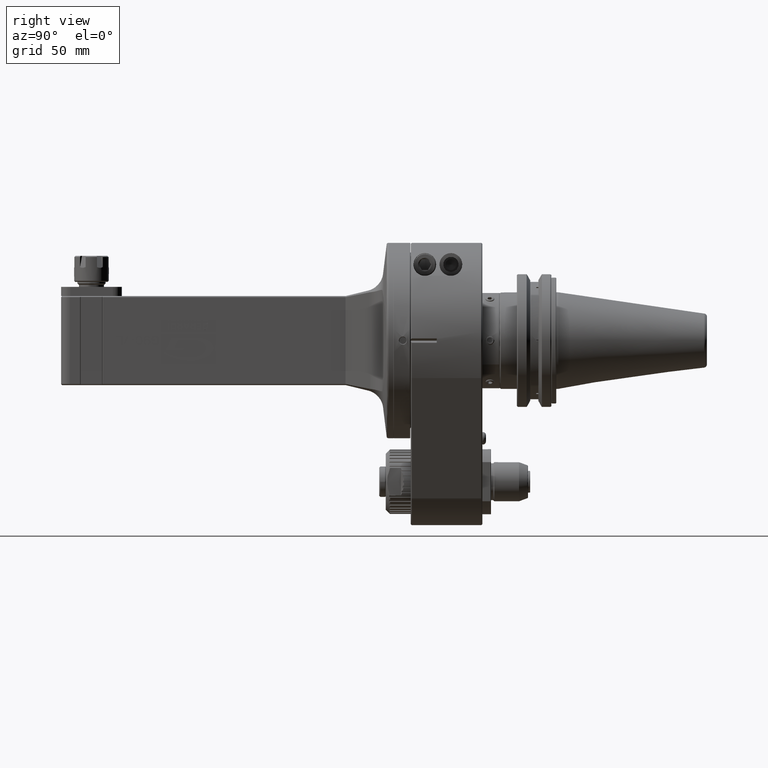
[diagram: clean part render]
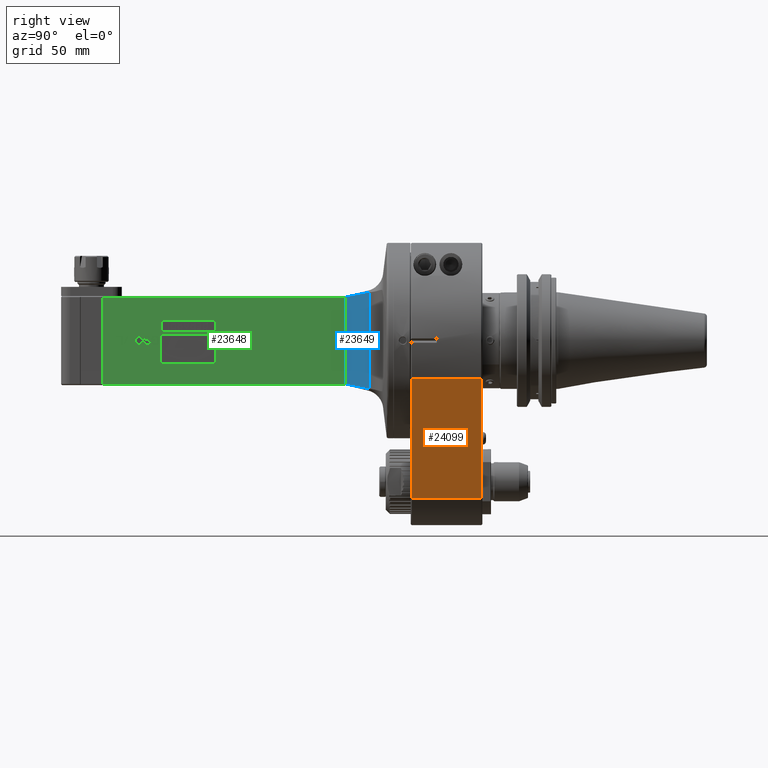
[diagram: same view with three faces highlighted in distinct colors, each labeled with its STEP entity id]
A machine part, right view with three faces highlighted in distinct colors.
Their STEP definitions:

[orange] entity #24099 — the highlighted planar face has unit normal (0.9231, 0, -0.3846).
#1950=LINE('',#42005,#4079);
#1959=LINE('',#42026,#4088);
#1963=LINE('',#42042,#4092);
#1964=LINE('',#42126,#4093);
#4079=VECTOR('',#30734,10.);
#4088=VECTOR('',#30759,10.);
#4092=VECTOR('',#30773,32.0000483181088);
#4093=VECTOR('',#30776,31.99992477058);
#6159=FACE_OUTER_BOUND('',#7654,.T.);
#7654=EDGE_LOOP('',(#19044,#19045,#19046,#19047));
#10687=VERTEX_POINT('',#42000);
#10688=VERTEX_POINT('',#42004);
#10691=VERTEX_POINT('',#42021);
#10692=VERTEX_POINT('',#42025);
#13640=EDGE_CURVE('',#10687,#10688,#1950,.T.);
#13651=EDGE_CURVE('',#10691,#10692,#1959,.T.);
#13659=EDGE_CURVE('',#10692,#10687,#1963,.T.);
#13663=EDGE_CURVE('',#10691,#10688,#1964,.T.);
#19044=ORIENTED_EDGE('',*,*,#13640,.F.);
#19045=ORIENTED_EDGE('',*,*,#13659,.F.);
#19046=ORIENTED_EDGE('',*,*,#13651,.F.);
#19047=ORIENTED_EDGE('',*,*,#13663,.T.);
#23030=PLANE('',#25987);
#24099=ADVANCED_FACE('',(#6159),#23030,.T.);
#25987=AXIS2_PLACEMENT_3D('',#42125,#30774,#30775);
#30734=DIRECTION('',(-0.384615384615406,3.39139971075705E-14,-0.923076923076914));
#30759=DIRECTION('',(0.384615384615406,3.39925017305023E-14,0.923076923076914));
#30773=DIRECTION('',(-3.05107735213611E-6,0.999999999994537,1.27128224226905E-6));
#30774=DIRECTION('center_axis',(0.923076923076914,0.,-0.384615384615406));
#30775=DIRECTION('ref_axis',(-0.384615384615406,0.,-0.923076923076914));
#30776=DIRECTION('',(0.,1.,0.));
#42000=CARTESIAN_POINT('',(41.5384388384042,179.499928540718,-17.3076109934829));
#42004=CARTESIAN_POINT('',(18.4615488916162,179.49984412637,-72.6922401409267));
#42005=CARTESIAN_POINT('',(35.7692391308481,179.500000000003,-31.1537777406057));
#42021=CARTESIAN_POINT('',(18.4615061899688,147.500093571229,-72.6922222896272));
#42025=CARTESIAN_POINT('',(41.5382782036942,147.49968597199,-17.3075440671294));
#42026=CARTESIAN_POINT('',(35.7692391308479,147.499999999997,-31.1537777406062));
#42042=CARTESIAN_POINT('',(41.53854100259,147.4999229556,-17.30765356189));
#42125=CARTESIAN_POINT('Origin',(41.53846990008,147.,-17.30762389445));
#42126=CARTESIAN_POINT('',(18.46151212093,147.5000376147,-72.69222476086));

[blue] entity #23649 — the highlighted planar face has unit normal (0.9487, -0.3162, 0).
#18=ELLIPSE('',#25317,604.125701403409,19.8480944114194);
#27=ELLIPSE('',#25373,605.135766541869,19.8693336282883);
#1057=LINE('',#38777,#3186);
#1193=LINE('',#39049,#3322);
#3186=VECTOR('',#28719,40.);
#3322=VECTOR('',#28857,44.36706754806);
#5709=FACE_OUTER_BOUND('',#7173,.T.);
#7173=EDGE_LOOP('',(#16818,#16819,#16820,#16821));
#9862=VERTEX_POINT('',#36713);
#9866=VERTEX_POINT('',#36748);
#9918=VERTEX_POINT('',#38518);
#9919=VERTEX_POINT('',#38523);
#12381=EDGE_CURVE('',#9866,#9862,#18,.T.);
#12460=EDGE_CURVE('',#9919,#9918,#27,.T.);
#12518=EDGE_CURVE('',#9919,#9862,#1057,.T.);
#12654=EDGE_CURVE('',#9918,#9866,#1193,.T.);
#16818=ORIENTED_EDGE('',*,*,#12654,.T.);
#16819=ORIENTED_EDGE('',*,*,#12381,.T.);
#16820=ORIENTED_EDGE('',*,*,#12518,.F.);
#16821=ORIENTED_EDGE('',*,*,#12460,.T.);
#22703=PLANE('',#25413);
#23649=ADVANCED_FACE('',(#5709),#22703,.T.);
#25317=AXIS2_PLACEMENT_3D('',#36749,#28484,#28485);
#25373=AXIS2_PLACEMENT_3D('',#38524,#28610,#28611);
#25413=AXIS2_PLACEMENT_3D('',#39048,#28855,#28856);
#28484=DIRECTION('center_axis',(0.948687353573761,-0.316215591914247,-6.78198789504958E-5));
#28485=DIRECTION('ref_axis',(0.314131377072307,0.942409814259539,0.114826912899188));
#28610=DIRECTION('center_axis',(0.948687356785233,-0.31621558226789,6.78736138693006E-5));
#28611=DIRECTION('ref_axis',(0.314132193097332,0.942412279688653,-0.114804443955352));
#28719=DIRECTION('',(0.,0.,1.));
#28855=DIRECTION('center_axis',(0.948683298050524,-0.316227766016808,0.));
#28856=DIRECTION('ref_axis',(0.316227766016808,0.948683298050524,0.));
#28857=DIRECTION('',(0.,0.,1.));
#36713=CARTESIAN_POINT('',(15.,117.,20.));
#36748=CARTESIAN_POINT('',(18.64945573419,127.9483672026,22.18353377403));
#36749=CARTESIAN_POINT('Origin',(189.741352667871,641.234468526518,76.010943503144));
#38518=CARTESIAN_POINT('',(18.64945573419,127.9483672026,-22.18353377403));
#38523=CARTESIAN_POINT('',(15.,117.,-20.));
#38524=CARTESIAN_POINT('Origin',(190.057800546979,642.183839467653,-76.1115045068981));
#38777=CARTESIAN_POINT('',(15.,117.,-20.));
#39048=CARTESIAN_POINT('Origin',(15.,117.,-54.));
#39049=CARTESIAN_POINT('',(18.64945573419,127.9483672026,-22.18353377403));

[green] entity #23648 — the highlighted planar face has unit normal (1, 0, 0).
#1013=LINE('',#36714,#3142);
#1052=LINE('',#38766,#3181);
#1056=LINE('',#38775,#3185);
#1057=LINE('',#38777,#3186);
#1058=LINE('',#38780,#3187);
#1059=LINE('',#38782,#3188);
#1060=LINE('',#38784,#3189);
#1061=LINE('',#38785,#3190);
#1062=LINE('',#38788,#3191);
#1063=LINE('',#38790,#3192);
#1064=LINE('',#38792,#3193);
#1065=LINE('',#38793,#3194);
#1066=LINE('',#38796,#3195);
#1067=LINE('',#38798,#3196);
#1068=LINE('',#38800,#3197);
#1069=LINE('',#38802,#3198);
#1070=LINE('',#38804,#3199);
#1071=LINE('',#38806,#3200);
#1072=LINE('',#38808,#3201);
#1073=LINE('',#38810,#3202);
#1074=LINE('',#38812,#3203);
#1075=LINE('',#38814,#3204);
#1076=LINE('',#38816,#3205);
#1077=LINE('',#38818,#3206);
#1078=LINE('',#38820,#3207);
#1079=LINE('',#38822,#3208);
#1080=LINE('',#38824,#3209);
#1081=LINE('',#38826,#3210);
#1082=LINE('',#38828,#3211);
#1083=LINE('',#38830,#3212);
#1084=LINE('',#38832,#3213);
#1085=LINE('',#38834,#3214);
#1086=LINE('',#38836,#3215);
#1087=LINE('',#38838,#3216);
#1088=LINE('',#38840,#3217);
#1089=LINE('',#38842,#3218);
#1090=LINE('',#38844,#3219);
#1091=LINE('',#38846,#3220);
#1092=LINE('',#38848,#3221);
#1093=LINE('',#38850,#3222);
#1094=LINE('',#38852,#3223);
#1095=LINE('',#38854,#3224);
#1096=LINE('',#38856,#3225);
#1097=LINE('',#38858,#3226);
#1098=LINE('',#38860,#3227);
#1099=LINE('',#38862,#3228);
#1100=LINE('',#38864,#3229);
#1101=LINE('',#38866,#3230);
#1102=LINE('',#38868,#3231);
#1103=LINE('',#38870,#3232);
#1104=LINE('',#38872,#3233);
#1105=LINE('',#38874,#3234);
#1106=LINE('',#38876,#3235);
#1107=LINE('',#38878,#3236);
#1108=LINE('',#38880,#3237);
#1109=LINE('',#38881,#3238);
#1110=LINE('',#38884,#3239);
#1111=LINE('',#38886,#3240);
#1112=LINE('',#38888,#3241);
#1113=LINE('',#38890,#3242);
#1114=LINE('',#38892,#3243);
#1115=LINE('',#38894,#3244);
#1116=LINE('',#38896,#3245);
#1117=LINE('',#38898,#3246);
#1118=LINE('',#38900,#3247);
#1119=LINE('',#38902,#3248);
#1120=LINE('',#38904,#3249);
#1121=LINE('',#38906,#3250);
#1122=LINE('',#38908,#3251);
#1123=LINE('',#38910,#3252);
#1124=LINE('',#38912,#3253);
#1125=LINE('',#38914,#3254);
#1126=LINE('',#38916,#3255);
#1127=LINE('',#38918,#3256);
#1128=LINE('',#38920,#3257);
#1129=LINE('',#38922,#3258);
#1130=LINE('',#38924,#3259);
#1131=LINE('',#38926,#3260);
#1132=LINE('',#38928,#3261);
#1133=LINE('',#38930,#3262);
#1134=LINE('',#38932,#3263);
#1135=LINE('',#38934,#3264);
#1136=LINE('',#38936,#3265);
#1137=LINE('',#38938,#3266);
#1138=LINE('',#38940,#3267);
#1139=LINE('',#38942,#3268);
#1140=LINE('',#38944,#3269);
#1141=LINE('',#38946,#3270);
#1142=LINE('',#38948,#3271);
#1143=LINE('',#38950,#3272);
#1144=LINE('',#38952,#3273);
#1145=LINE('',#38954,#3274);
#1146=LINE('',#38956,#3275);
#1147=LINE('',#38958,#3276);
#1148=LINE('',#38960,#3277);
#1149=LINE('',#38961,#3278);
#1150=LINE('',#38964,#3279);
#1151=LINE('',#38966,#3280);
#1152=LINE('',#38968,#3281);
#1153=LINE('',#38970,#3282);
#1154=LINE('',#38972,#3283);
#1155=LINE('',#38974,#3284);
#1156=LINE('',#38976,#3285);
#1157=LINE('',#38978,#3286);
#1158=LINE('',#38980,#3287);
#1159=LINE('',#38982,#3288);
#1160=LINE('',#38984,#3289);
#1161=LINE('',#38986,#3290);
#1162=LINE('',#38988,#3291);
#1163=LINE('',#38990,#3292);
#1164=LINE('',#38992,#3293);
#1165=LINE('',#38994,#3294);
#1166=LINE('',#38996,#3295);
#1167=LINE('',#38998,#3296);
#1168=LINE('',#39000,#3297);
#1169=LINE('',#39002,#3298);
#1170=LINE('',#39004,#3299);
#1171=LINE('',#39006,#3300);
#1172=LINE('',#39008,#3301);
#1173=LINE('',#39010,#3302);
#1174=LINE('',#39012,#3303);
#1175=LINE('',#39013,#3304);
#1176=LINE('',#39016,#3305);
#1177=LINE('',#39018,#3306);
#1178=LINE('',#39020,#3307);
#1179=LINE('',#39021,#3308);
#1180=LINE('',#39024,#3309);
#1181=LINE('',#39026,#3310);
#1182=LINE('',#39028,#3311);
#1183=LINE('',#39030,#3312);
#1184=LINE('',#39032,#3313);
#1185=LINE('',#39034,#3314);
#1186=LINE('',#39035,#3315);
#1187=LINE('',#39038,#3316);
#1188=LINE('',#39040,#3317);
#1189=LINE('',#39042,#3318);
#1190=LINE('',#39044,#3319);
#1191=LINE('',#39046,#3320);
#1192=LINE('',#39047,#3321);
#3142=VECTOR('',#28477,111.8);
#3181=VECTOR('',#28702,111.8);
#3185=VECTOR('',#28716,40.);
#3186=VECTOR('',#28719,40.);
#3187=VECTOR('',#28720,13.766);
#3188=VECTOR('',#28721,25.014);
#3189=VECTOR('',#28722,13.766);
#3190=VECTOR('',#28723,25.014);
#3191=VECTOR('',#28724,5.291);
#3192=VECTOR('',#28725,25.036);
#3193=VECTOR('',#28726,5.291);
#3194=VECTOR('',#28727,25.036);
#3195=VECTOR('',#28728,1.276595711708);
#3196=VECTOR('',#28729,0.350476799417901);
#3197=VECTOR('',#28730,0.476445959700797);
#3198=VECTOR('',#28731,0.374277229504597);
#3199=VECTOR('',#28732,0.425269647757222);
#3200=VECTOR('',#28733,0.7499998807907);
#3201=VECTOR('',#28734,0.425269589358281);
#3202=VECTOR('',#28735,0.374277335673004);
#3203=VECTOR('',#28736,0.476445834598099);
#3204=VECTOR('',#28737,0.379034738092882);
#3205=VECTOR('',#28738,0.433614820179393);
#3206=VECTOR('',#28739,1.276595711708);
#3207=VECTOR('',#28740,0.433615054153596);
#3208=VECTOR('',#28741,0.379034684559679);
#3209=VECTOR('',#28742,0.476445813304122);
#3210=VECTOR('',#28743,0.374277325507999);
#3211=VECTOR('',#28744,0.425269587867295);
#3212=VECTOR('',#28745,0.7499998807907);
#3213=VECTOR('',#28746,0.425269646266095);
#3214=VECTOR('',#28747,0.374277219339489);
#3215=VECTOR('',#28748,0.476445938406725);
#3216=VECTOR('',#28749,0.433615038402985);
#3217=VECTOR('',#28750,0.5);
#3218=VECTOR('',#28751,0.268574766529104);
#3219=VECTOR('',#28752,0.302444009342788);
#3220=VECTOR('',#28753,0.344026614917808);
#3221=VECTOR('',#28754,0.7499998807907);
#3222=VECTOR('',#28755,0.344026499413802);
#3223=VECTOR('',#28756,0.302444009342788);
#3224=VECTOR('',#28757,0.304902867185089);
#3225=VECTOR('',#28758,0.350476755694905);
#3226=VECTOR('',#28759,1.276595711708);
#3227=VECTOR('',#28760,0.350476755694905);
#3228=VECTOR('',#28761,0.304902667538408);
#3229=VECTOR('',#28762,0.3024440428877);
#3230=VECTOR('',#28763,0.344026499413802);
#3231=VECTOR('',#28764,0.7499998807907);
#3232=VECTOR('',#28765,0.344026614917808);
#3233=VECTOR('',#28766,0.302444042887717);
#3234=VECTOR('',#28767,0.268574539877606);
#3235=VECTOR('',#28768,0.6808511018753);
#3236=VECTOR('',#28769,0.75);
#3237=VECTOR('',#28770,0.5106382369995);
#3238=VECTOR('',#28771,1.25);
#3239=VECTOR('',#28772,0.268574522564093);
#3240=VECTOR('',#28773,0.4166665077209);
#3241=VECTOR('',#28774,0.304902619706402);
#3242=VECTOR('',#28775,0.302444009342788);
#3243=VECTOR('',#28776,0.264089179439098);
#3244=VECTOR('',#28777,0.5);
#3245=VECTOR('',#28778,0.264089179439098);
#3246=VECTOR('',#28779,0.302444009342788);
#3247=VECTOR('',#28780,0.304902880356412);
#3248=VECTOR('',#28781,0.2685744659012);
#3249=VECTOR('',#28782,0.51739346900309);
#3250=VECTOR('',#28783,0.1702127456665);
#3251=VECTOR('',#28784,0.604888018685475);
#3252=VECTOR('',#28785,0.425269436527202);
#3253=VECTOR('',#28786,0.4166669845581);
#3254=VECTOR('',#28787,0.425269436527202);
#3255=VECTOR('',#28788,0.488670472739893);
#3256=VECTOR('',#28789,0.422361829654802);
#3257=VECTOR('',#28790,0.457006752345693);
#3258=VECTOR('',#28791,0.340425491333);
#3259=VECTOR('',#28792,0.457006974343897);
#3260=VECTOR('',#28793,0.422361829654802);
#3261=VECTOR('',#28794,0.488670472739893);
#3262=VECTOR('',#28795,0.425269412670614);
#3263=VECTOR('',#28796,0.4166669845581);
#3264=VECTOR('',#28797,0.425269412670614);
#3265=VECTOR('',#28798,0.488670472739893);
#3266=VECTOR('',#28799,0.422361829654802);
#3267=VECTOR('',#28800,0.45700706129329);
#3268=VECTOR('',#28801,0.601544704579297);
#3269=VECTOR('',#28802,0.5957446098327);
#3270=VECTOR('',#28803,0.601544822639182);
#3271=VECTOR('',#28804,0.457006894794711);
#3272=VECTOR('',#28805,0.422361853675616);
#3273=VECTOR('',#28806,0.488670484418169);
#3274=VECTOR('',#28807,0.425269414161601);
#3275=VECTOR('',#28808,0.3333334922791);
#3276=VECTOR('',#28809,0.425269414161601);
#3277=VECTOR('',#28810,0.488670890994998);
#3278=VECTOR('',#28811,0.422361853675616);
#3279=VECTOR('',#28812,0.7659573554993);
#3280=VECTOR('',#28813,0.433614758608899);
#3281=VECTOR('',#28814,0.268574840505588);
#3282=VECTOR('',#28815,0.379034615761192);
#3283=VECTOR('',#28816,0.357334704010493);
#3284=VECTOR('',#28817,0.488670066163185);
#3285=VECTOR('',#28818,0.507191378768213);
#3286=VECTOR('',#28819,0.507191378768213);
#3287=VECTOR('',#28820,0.48867087931679);
#3288=VECTOR('',#28821,0.357334370403284);
#3289=VECTOR('',#28822,0.379034825432989);
#3290=VECTOR('',#28823,0.268574692552808);
#3291=VECTOR('',#28824,0.433614758608899);
#3292=VECTOR('',#28825,0.7659573554993);
#3293=VECTOR('',#28826,0.433614875596007);
#3294=VECTOR('',#28827,0.2685744659012);
#3295=VECTOR('',#28828,0.379034878966189);
#3296=VECTOR('',#28829,0.357334391697303);
#3297=VECTOR('',#28830,0.488670890995098);
#3298=VECTOR('',#28831,0.507191380018417);
#3299=VECTOR('',#28832,0.507191380018417);
#3300=VECTOR('',#28833,0.48867007784147);
#3301=VECTOR('',#28834,0.357334725304617);
#3302=VECTOR('',#28835,0.379034669294405);
#3303=VECTOR('',#28836,0.268574613854201);
#3304=VECTOR('',#28837,0.433614875596007);
#3305=VECTOR('',#28838,0.4255319833755);
#3306=VECTOR('',#28839,1.166666984558);
#3307=VECTOR('',#28840,0.4255319833755);
#3308=VECTOR('',#28841,1.166666984558);
#3309=VECTOR('',#28842,0.4255318641663);
#3310=VECTOR('',#28843,3.94393221183011);
#3311=VECTOR('',#28844,0.5);
#3312=VECTOR('',#28845,3.94393180881602);
#3313=VECTOR('',#28846,2.5);
#3314=VECTOR('',#28847,0.4255318641663);
#3315=VECTOR('',#28848,3.000000953674);
#3316=VECTOR('',#28849,4.);
#3317=VECTOR('',#28850,0.5);
#3318=VECTOR('',#28851,3.489361703396);
#3319=VECTOR('',#28852,2.5);
#3320=VECTOR('',#28853,0.5106382966042);
#3321=VECTOR('',#28854,3.);
#5361=FACE_BOUND('',#7165,.T.);
#5362=FACE_BOUND('',#7166,.T.);
#5363=FACE_BOUND('',#7167,.T.);
#5364=FACE_BOUND('',#7168,.T.);
#5365=FACE_BOUND('',#7169,.T.);
#5366=FACE_BOUND('',#7170,.T.);
#5367=FACE_BOUND('',#7171,.T.);
#5368=FACE_BOUND('',#7172,.T.);
#5708=FACE_OUTER_BOUND('',#7164,.T.);
#7164=EDGE_LOOP('',(#16679,#16680,#16681,#16682));
#7165=EDGE_LOOP('',(#16683,#16684,#16685,#16686));
#7166=EDGE_LOOP('',(#16687,#16688,#16689,#16690));
#7167=EDGE_LOOP('',(#16691,#16692,#16693,#16694,#16695,#16696,#16697,#16698,
#16699,#16700,#16701,#16702,#16703,#16704,#16705,#16706,#16707,#16708,#16709,
#16710,#16711,#16712,#16713,#16714,#16715,#16716,#16717,#16718,#16719,#16720,
#16721,#16722,#16723,#16724,#16725,#16726,#16727,#16728,#16729,#16730,#16731,
#16732,#16733,#16734));
#7168=EDGE_LOOP('',(#16735,#16736,#16737,#16738,#16739,#16740,#16741,#16742,
#16743,#16744,#16745,#16746,#16747,#16748,#16749,#16750,#16751,#16752,#16753,
#16754,#16755,#16756,#16757,#16758,#16759,#16760,#16761,#16762,#16763,#16764,
#16765,#16766,#16767,#16768,#16769,#16770,#16771,#16772,#16773,#16774));
#7169=EDGE_LOOP('',(#16775,#16776,#16777,#16778,#16779,#16780,#16781,#16782,
#16783,#16784,#16785,#16786,#16787,#16788,#16789,#16790,#16791,#16792,#16793,
#16794,#16795,#16796,#16797,#16798,#16799,#16800));
#7170=EDGE_LOOP('',(#16801,#16802,#16803,#16804));
#7171=EDGE_LOOP('',(#16805,#16806,#16807,#16808,#16809,#16810,#16811));
#7172=EDGE_LOOP('',(#16812,#16813,#16814,#16815,#16816,#16817));
#9861=VERTEX_POINT('',#36711);
#9862=VERTEX_POINT('',#36713);
#9919=VERTEX_POINT('',#38523);
#9954=VERTEX_POINT('',#38765);
#9955=VERTEX_POINT('',#38778);
#9956=VERTEX_POINT('',#38779);
#9957=VERTEX_POINT('',#38781);
#9958=VERTEX_POINT('',#38783);
#9959=VERTEX_POINT('',#38786);
#9960=VERTEX_POINT('',#38787);
#9961=VERTEX_POINT('',#38789);
#9962=VERTEX_POINT('',#38791);
#9963=VERTEX_POINT('',#38794);
#9964=VERTEX_POINT('',#38795);
#9965=VERTEX_POINT('',#38797);
#9966=VERTEX_POINT('',#38799);
#9967=VERTEX_POINT('',#38801);
#9968=VERTEX_POINT('',#38803);
#9969=VERTEX_POINT('',#38805);
#9970=VERTEX_POINT('',#38807);
#9971=VERTEX_POINT('',#38809);
#9972=VERTEX_POINT('',#38811);
#9973=VERTEX_POINT('',#38813);
#9974=VERTEX_POINT('',#38815);
#9975=VERTEX_POINT('',#38817);
#9976=VERTEX_POINT('',#38819);
#9977=VERTEX_POINT('',#38821);
#9978=VERTEX_POINT('',#38823);
#9979=VERTEX_POINT('',#38825);
#9980=VERTEX_POINT('',#38827);
#9981=VERTEX_POINT('',#38829);
#9982=VERTEX_POINT('',#38831);
#9983=VERTEX_POINT('',#38833);
#9984=VERTEX_POINT('',#38835);
#9985=VERTEX_POINT('',#38837);
#9986=VERTEX_POINT('',#38839);
#9987=VERTEX_POINT('',#38841);
#9988=VERTEX_POINT('',#38843);
#9989=VERTEX_POINT('',#38845);
#9990=VERTEX_POINT('',#38847);
#9991=VERTEX_POINT('',#38849);
#9992=VERTEX_POINT('',#38851);
#9993=VERTEX_POINT('',#38853);
#9994=VERTEX_POINT('',#38855);
#9995=VERTEX_POINT('',#38857);
#9996=VERTEX_POINT('',#38859);
#9997=VERTEX_POINT('',#38861);
#9998=VERTEX_POINT('',#38863);
#9999=VERTEX_POINT('',#38865);
#10000=VERTEX_POINT('',#38867);
#10001=VERTEX_POINT('',#38869);
#10002=VERTEX_POINT('',#38871);
#10003=VERTEX_POINT('',#38873);
#10004=VERTEX_POINT('',#38875);
#10005=VERTEX_POINT('',#38877);
#10006=VERTEX_POINT('',#38879);
#10007=VERTEX_POINT('',#38882);
#10008=VERTEX_POINT('',#38883);
#10009=VERTEX_POINT('',#38885);
#10010=VERTEX_POINT('',#38887);
#10011=VERTEX_POINT('',#38889);
#10012=VERTEX_POINT('',#38891);
#10013=VERTEX_POINT('',#38893);
#10014=VERTEX_POINT('',#38895);
#10015=VERTEX_POINT('',#38897);
#10016=VERTEX_POINT('',#38899);
#10017=VERTEX_POINT('',#38901);
#10018=VERTEX_POINT('',#38903);
#10019=VERTEX_POINT('',#38905);
#10020=VERTEX_POINT('',#38907);
#10021=VERTEX_POINT('',#38909);
#10022=VERTEX_POINT('',#38911);
#10023=VERTEX_POINT('',#38913);
#10024=VERTEX_POINT('',#38915);
#10025=VERTEX_POINT('',#38917);
#10026=VERTEX_POINT('',#38919);
#10027=VERTEX_POINT('',#38921);
#10028=VERTEX_POINT('',#38923);
#10029=VERTEX_POINT('',#38925);
#10030=VERTEX_POINT('',#38927);
#10031=VERTEX_POINT('',#38929);
#10032=VERTEX_POINT('',#38931);
#10033=VERTEX_POINT('',#38933);
#10034=VERTEX_POINT('',#38935);
#10035=VERTEX_POINT('',#38937);
#10036=VERTEX_POINT('',#38939);
#10037=VERTEX_POINT('',#38941);
#10038=VERTEX_POINT('',#38943);
#10039=VERTEX_POINT('',#38945);
#10040=VERTEX_POINT('',#38947);
#10041=VERTEX_POINT('',#38949);
#10042=VERTEX_POINT('',#38951);
#10043=VERTEX_POINT('',#38953);
#10044=VERTEX_POINT('',#38955);
#10045=VERTEX_POINT('',#38957);
#10046=VERTEX_POINT('',#38959);
#10047=VERTEX_POINT('',#38962);
#10048=VERTEX_POINT('',#38963);
#10049=VERTEX_POINT('',#38965);
#10050=VERTEX_POINT('',#38967);
#10051=VERTEX_POINT('',#38969);
#10052=VERTEX_POINT('',#38971);
#10053=VERTEX_POINT('',#38973);
#10054=VERTEX_POINT('',#38975);
#10055=VERTEX_POINT('',#38977);
#10056=VERTEX_POINT('',#38979);
#10057=VERTEX_POINT('',#38981);
#10058=VERTEX_POINT('',#38983);
#10059=VERTEX_POINT('',#38985);
#10060=VERTEX_POINT('',#38987);
#10061=VERTEX_POINT('',#38989);
#10062=VERTEX_POINT('',#38991);
#10063=VERTEX_POINT('',#38993);
#10064=VERTEX_POINT('',#38995);
#10065=VERTEX_POINT('',#38997);
#10066=VERTEX_POINT('',#38999);
#10067=VERTEX_POINT('',#39001);
#10068=VERTEX_POINT('',#39003);
#10069=VERTEX_POINT('',#39005);
#10070=VERTEX_POINT('',#39007);
#10071=VERTEX_POINT('',#39009);
#10072=VERTEX_POINT('',#39011);
#10073=VERTEX_POINT('',#39014);
#10074=VERTEX_POINT('',#39015);
#10075=VERTEX_POINT('',#39017);
#10076=VERTEX_POINT('',#39019);
#10077=VERTEX_POINT('',#39022);
#10078=VERTEX_POINT('',#39023);
#10079=VERTEX_POINT('',#39025);
#10080=VERTEX_POINT('',#39027);
#10081=VERTEX_POINT('',#39029);
#10082=VERTEX_POINT('',#39031);
#10083=VERTEX_POINT('',#39033);
#10084=VERTEX_POINT('',#39036);
#10085=VERTEX_POINT('',#39037);
#10086=VERTEX_POINT('',#39039);
#10087=VERTEX_POINT('',#39041);
#10088=VERTEX_POINT('',#39043);
#10089=VERTEX_POINT('',#39045);
#12376=EDGE_CURVE('',#9862,#9861,#1013,.T.);
#12512=EDGE_CURVE('',#9919,#9954,#1052,.T.);
#12517=EDGE_CURVE('',#9954,#9861,#1056,.T.);
#12518=EDGE_CURVE('',#9919,#9862,#1057,.T.);
#12519=EDGE_CURVE('',#9955,#9956,#1058,.T.);
#12520=EDGE_CURVE('',#9957,#9955,#1059,.T.);
#12521=EDGE_CURVE('',#9958,#9957,#1060,.T.);
#12522=EDGE_CURVE('',#9956,#9958,#1061,.T.);
#12523=EDGE_CURVE('',#9959,#9960,#1062,.T.);
#12524=EDGE_CURVE('',#9961,#9959,#1063,.T.);
#12525=EDGE_CURVE('',#9962,#9961,#1064,.T.);
#12526=EDGE_CURVE('',#9960,#9962,#1065,.T.);
#12527=EDGE_CURVE('',#9963,#9964,#1066,.T.);
#12528=EDGE_CURVE('',#9965,#9963,#1067,.T.);
#12529=EDGE_CURVE('',#9966,#9965,#1068,.T.);
#12530=EDGE_CURVE('',#9967,#9966,#1069,.T.);
#12531=EDGE_CURVE('',#9968,#9967,#1070,.T.);
#12532=EDGE_CURVE('',#9969,#9968,#1071,.T.);
#12533=EDGE_CURVE('',#9970,#9969,#1072,.T.);
#12534=EDGE_CURVE('',#9971,#9970,#1073,.T.);
#12535=EDGE_CURVE('',#9972,#9971,#1074,.T.);
#12536=EDGE_CURVE('',#9973,#9972,#1075,.T.);
#12537=EDGE_CURVE('',#9974,#9973,#1076,.T.);
#12538=EDGE_CURVE('',#9975,#9974,#1077,.T.);
#12539=EDGE_CURVE('',#9976,#9975,#1078,.T.);
#12540=EDGE_CURVE('',#9977,#9976,#1079,.T.);
#12541=EDGE_CURVE('',#9978,#9977,#1080,.T.);
#12542=EDGE_CURVE('',#9979,#9978,#1081,.T.);
#12543=EDGE_CURVE('',#9980,#9979,#1082,.T.);
#12544=EDGE_CURVE('',#9981,#9980,#1083,.T.);
#12545=EDGE_CURVE('',#9982,#9981,#1084,.T.);
#12546=EDGE_CURVE('',#9983,#9982,#1085,.T.);
#12547=EDGE_CURVE('',#9984,#9983,#1086,.T.);
#12548=EDGE_CURVE('',#9985,#9984,#1087,.T.);
#12549=EDGE_CURVE('',#9986,#9985,#1088,.T.);
#12550=EDGE_CURVE('',#9987,#9986,#1089,.T.);
#12551=EDGE_CURVE('',#9988,#9987,#1090,.T.);
#12552=EDGE_CURVE('',#9989,#9988,#1091,.T.);
#12553=EDGE_CURVE('',#9990,#9989,#1092,.T.);
#12554=EDGE_CURVE('',#9991,#9990,#1093,.T.);
#12555=EDGE_CURVE('',#9992,#9991,#1094,.T.);
#12556=EDGE_CURVE('',#9993,#9992,#1095,.T.);
#12557=EDGE_CURVE('',#9994,#9993,#1096,.T.);
#12558=EDGE_CURVE('',#9995,#9994,#1097,.T.);
#12559=EDGE_CURVE('',#9996,#9995,#1098,.T.);
#12560=EDGE_CURVE('',#9997,#9996,#1099,.T.);
#12561=EDGE_CURVE('',#9998,#9997,#1100,.T.);
#12562=EDGE_CURVE('',#9999,#9998,#1101,.T.);
#12563=EDGE_CURVE('',#10000,#9999,#1102,.T.);
#12564=EDGE_CURVE('',#10001,#10000,#1103,.T.);
#12565=EDGE_CURVE('',#10002,#10001,#1104,.T.);
#12566=EDGE_CURVE('',#10003,#10002,#1105,.T.);
#12567=EDGE_CURVE('',#10004,#10003,#1106,.T.);
#12568=EDGE_CURVE('',#10005,#10004,#1107,.T.);
#12569=EDGE_CURVE('',#10006,#10005,#1108,.T.);
#12570=EDGE_CURVE('',#9964,#10006,#1109,.T.);
#12571=EDGE_CURVE('',#10007,#10008,#1110,.T.);
#12572=EDGE_CURVE('',#10009,#10007,#1111,.T.);
#12573=EDGE_CURVE('',#10010,#10009,#1112,.T.);
#12574=EDGE_CURVE('',#10011,#10010,#1113,.T.);
#12575=EDGE_CURVE('',#10012,#10011,#1114,.T.);
#12576=EDGE_CURVE('',#10013,#10012,#1115,.T.);
#12577=EDGE_CURVE('',#10014,#10013,#1116,.T.);
#12578=EDGE_CURVE('',#10015,#10014,#1117,.T.);
#12579=EDGE_CURVE('',#10016,#10015,#1118,.T.);
#12580=EDGE_CURVE('',#10017,#10016,#1119,.T.);
#12581=EDGE_CURVE('',#10018,#10017,#1120,.T.);
#12582=EDGE_CURVE('',#10019,#10018,#1121,.T.);
#12583=EDGE_CURVE('',#10020,#10019,#1122,.T.);
#12584=EDGE_CURVE('',#10021,#10020,#1123,.T.);
#12585=EDGE_CURVE('',#10022,#10021,#1124,.T.);
#12586=EDGE_CURVE('',#10023,#10022,#1125,.T.);
#12587=EDGE_CURVE('',#10024,#10023,#1126,.T.);
#12588=EDGE_CURVE('',#10025,#10024,#1127,.T.);
#12589=EDGE_CURVE('',#10026,#10025,#1128,.T.);
#12590=EDGE_CURVE('',#10027,#10026,#1129,.T.);
#12591=EDGE_CURVE('',#10028,#10027,#1130,.T.);
#12592=EDGE_CURVE('',#10029,#10028,#1131,.T.);
#12593=EDGE_CURVE('',#10030,#10029,#1132,.T.);
#12594=EDGE_CURVE('',#10031,#10030,#1133,.T.);
#12595=EDGE_CURVE('',#10032,#10031,#1134,.T.);
#12596=EDGE_CURVE('',#10033,#10032,#1135,.T.);
#12597=EDGE_CURVE('',#10034,#10033,#1136,.T.);
#12598=EDGE_CURVE('',#10035,#10034,#1137,.T.);
#12599=EDGE_CURVE('',#10036,#10035,#1138,.T.);
#12600=EDGE_CURVE('',#10037,#10036,#1139,.T.);
#12601=EDGE_CURVE('',#10038,#10037,#1140,.T.);
#12602=EDGE_CURVE('',#10039,#10038,#1141,.T.);
#12603=EDGE_CURVE('',#10040,#10039,#1142,.T.);
#12604=EDGE_CURVE('',#10041,#10040,#1143,.T.);
#12605=EDGE_CURVE('',#10042,#10041,#1144,.T.);
#12606=EDGE_CURVE('',#10043,#10042,#1145,.T.);
#12607=EDGE_CURVE('',#10044,#10043,#1146,.T.);
#12608=EDGE_CURVE('',#10045,#10044,#1147,.T.);
#12609=EDGE_CURVE('',#10046,#10045,#1148,.T.);
#12610=EDGE_CURVE('',#10008,#10046,#1149,.T.);
#12611=EDGE_CURVE('',#10047,#10048,#1150,.T.);
#12612=EDGE_CURVE('',#10049,#10047,#1151,.T.);
#12613=EDGE_CURVE('',#10050,#10049,#1152,.T.);
#12614=EDGE_CURVE('',#10051,#10050,#1153,.T.);
#12615=EDGE_CURVE('',#10052,#10051,#1154,.T.);
#12616=EDGE_CURVE('',#10053,#10052,#1155,.T.);
#12617=EDGE_CURVE('',#10054,#10053,#1156,.T.);
#12618=EDGE_CURVE('',#10055,#10054,#1157,.T.);
#12619=EDGE_CURVE('',#10056,#10055,#1158,.T.);
#12620=EDGE_CURVE('',#10057,#10056,#1159,.T.);
#12621=EDGE_CURVE('',#10058,#10057,#1160,.T.);
#12622=EDGE_CURVE('',#10059,#10058,#1161,.T.);
#12623=EDGE_CURVE('',#10060,#10059,#1162,.T.);
#12624=EDGE_CURVE('',#10061,#10060,#1163,.T.);
#12625=EDGE_CURVE('',#10062,#10061,#1164,.T.);
#12626=EDGE_CURVE('',#10063,#10062,#1165,.T.);
#12627=EDGE_CURVE('',#10064,#10063,#1166,.T.);
#12628=EDGE_CURVE('',#10065,#10064,#1167,.T.);
#12629=EDGE_CURVE('',#10066,#10065,#1168,.T.);
#12630=EDGE_CURVE('',#10067,#10066,#1169,.T.);
#12631=EDGE_CURVE('',#10068,#10067,#1170,.T.);
#12632=EDGE_CURVE('',#10069,#10068,#1171,.T.);
#12633=EDGE_CURVE('',#10070,#10069,#1172,.T.);
#12634=EDGE_CURVE('',#10071,#10070,#1173,.T.);
#12635=EDGE_CURVE('',#10072,#10071,#1174,.T.);
#12636=EDGE_CURVE('',#10048,#10072,#1175,.T.);
#12637=EDGE_CURVE('',#10073,#10074,#1176,.T.);
#12638=EDGE_CURVE('',#10075,#10073,#1177,.T.);
#12639=EDGE_CURVE('',#10076,#10075,#1178,.T.);
#12640=EDGE_CURVE('',#10074,#10076,#1179,.T.);
#12641=EDGE_CURVE('',#10077,#10078,#1180,.T.);
#12642=EDGE_CURVE('',#10079,#10077,#1181,.T.);
#12643=EDGE_CURVE('',#10080,#10079,#1182,.T.);
#12644=EDGE_CURVE('',#10081,#10080,#1183,.T.);
#12645=EDGE_CURVE('',#10082,#10081,#1184,.T.);
#12646=EDGE_CURVE('',#10083,#10082,#1185,.T.);
#12647=EDGE_CURVE('',#10078,#10083,#1186,.T.);
#12648=EDGE_CURVE('',#10084,#10085,#1187,.T.);
#12649=EDGE_CURVE('',#10086,#10084,#1188,.T.);
#12650=EDGE_CURVE('',#10087,#10086,#1189,.T.);
#12651=EDGE_CURVE('',#10088,#10087,#1190,.T.);
#12652=EDGE_CURVE('',#10089,#10088,#1191,.T.);
#12653=EDGE_CURVE('',#10085,#10089,#1192,.T.);
#16679=ORIENTED_EDGE('',*,*,#12517,.F.);
#16680=ORIENTED_EDGE('',*,*,#12512,.F.);
#16681=ORIENTED_EDGE('',*,*,#12518,.T.);
#16682=ORIENTED_EDGE('',*,*,#12376,.T.);
#16683=ORIENTED_EDGE('',*,*,#12519,.F.);
#16684=ORIENTED_EDGE('',*,*,#12520,.F.);
#16685=ORIENTED_EDGE('',*,*,#12521,.F.);
#16686=ORIENTED_EDGE('',*,*,#12522,.F.);
#16687=ORIENTED_EDGE('',*,*,#12523,.F.);
#16688=ORIENTED_EDGE('',*,*,#12524,.F.);
#16689=ORIENTED_EDGE('',*,*,#12525,.F.);
#16690=ORIENTED_EDGE('',*,*,#12526,.F.);
#16691=ORIENTED_EDGE('',*,*,#12527,.F.);
#16692=ORIENTED_EDGE('',*,*,#12528,.F.);
#16693=ORIENTED_EDGE('',*,*,#12529,.F.);
#16694=ORIENTED_EDGE('',*,*,#12530,.F.);
#16695=ORIENTED_EDGE('',*,*,#12531,.F.);
#16696=ORIENTED_EDGE('',*,*,#12532,.F.);
#16697=ORIENTED_EDGE('',*,*,#12533,.F.);
#16698=ORIENTED_EDGE('',*,*,#12534,.F.);
#16699=ORIENTED_EDGE('',*,*,#12535,.F.);
#16700=ORIENTED_EDGE('',*,*,#12536,.F.);
#16701=ORIENTED_EDGE('',*,*,#12537,.F.);
#16702=ORIENTED_EDGE('',*,*,#12538,.F.);
#16703=ORIENTED_EDGE('',*,*,#12539,.F.);
#16704=ORIENTED_EDGE('',*,*,#12540,.F.);
#16705=ORIENTED_EDGE('',*,*,#12541,.F.);
#16706=ORIENTED_EDGE('',*,*,#12542,.F.);
#16707=ORIENTED_EDGE('',*,*,#12543,.F.);
#16708=ORIENTED_EDGE('',*,*,#12544,.F.);
#16709=ORIENTED_EDGE('',*,*,#12545,.F.);
#16710=ORIENTED_EDGE('',*,*,#12546,.F.);
#16711=ORIENTED_EDGE('',*,*,#12547,.F.);
#16712=ORIENTED_EDGE('',*,*,#12548,.F.);
#16713=ORIENTED_EDGE('',*,*,#12549,.F.);
#16714=ORIENTED_EDGE('',*,*,#12550,.F.);
#16715=ORIENTED_EDGE('',*,*,#12551,.F.);
#16716=ORIENTED_EDGE('',*,*,#12552,.F.);
#16717=ORIENTED_EDGE('',*,*,#12553,.F.);
#16718=ORIENTED_EDGE('',*,*,#12554,.F.);
#16719=ORIENTED_EDGE('',*,*,#12555,.F.);
#16720=ORIENTED_EDGE('',*,*,#12556,.F.);
#16721=ORIENTED_EDGE('',*,*,#12557,.F.);
#16722=ORIENTED_EDGE('',*,*,#12558,.F.);
#16723=ORIENTED_EDGE('',*,*,#12559,.F.);
#16724=ORIENTED_EDGE('',*,*,#12560,.F.);
#16725=ORIENTED_EDGE('',*,*,#12561,.F.);
#16726=ORIENTED_EDGE('',*,*,#12562,.F.);
#16727=ORIENTED_EDGE('',*,*,#12563,.F.);
#16728=ORIENTED_EDGE('',*,*,#12564,.F.);
#16729=ORIENTED_EDGE('',*,*,#12565,.F.);
#16730=ORIENTED_EDGE('',*,*,#12566,.F.);
#16731=ORIENTED_EDGE('',*,*,#12567,.F.);
#16732=ORIENTED_EDGE('',*,*,#12568,.F.);
#16733=ORIENTED_EDGE('',*,*,#12569,.F.);
#16734=ORIENTED_EDGE('',*,*,#12570,.F.);
#16735=ORIENTED_EDGE('',*,*,#12571,.F.);
#16736=ORIENTED_EDGE('',*,*,#12572,.F.);
#16737=ORIENTED_EDGE('',*,*,#12573,.F.);
#16738=ORIENTED_EDGE('',*,*,#12574,.F.);
#16739=ORIENTED_EDGE('',*,*,#12575,.F.);
#16740=ORIENTED_EDGE('',*,*,#12576,.F.);
#16741=ORIENTED_EDGE('',*,*,#12577,.F.);
#16742=ORIENTED_EDGE('',*,*,#12578,.F.);
#16743=ORIENTED_EDGE('',*,*,#12579,.F.);
#16744=ORIENTED_EDGE('',*,*,#12580,.F.);
#16745=ORIENTED_EDGE('',*,*,#12581,.F.);
#16746=ORIENTED_EDGE('',*,*,#12582,.F.);
#16747=ORIENTED_EDGE('',*,*,#12583,.F.);
#16748=ORIENTED_EDGE('',*,*,#12584,.F.);
#16749=ORIENTED_EDGE('',*,*,#12585,.F.);
#16750=ORIENTED_EDGE('',*,*,#12586,.F.);
#16751=ORIENTED_EDGE('',*,*,#12587,.F.);
#16752=ORIENTED_EDGE('',*,*,#12588,.F.);
#16753=ORIENTED_EDGE('',*,*,#12589,.F.);
#16754=ORIENTED_EDGE('',*,*,#12590,.F.);
#16755=ORIENTED_EDGE('',*,*,#12591,.F.);
#16756=ORIENTED_EDGE('',*,*,#12592,.F.);
#16757=ORIENTED_EDGE('',*,*,#12593,.F.);
#16758=ORIENTED_EDGE('',*,*,#12594,.F.);
#16759=ORIENTED_EDGE('',*,*,#12595,.F.);
#16760=ORIENTED_EDGE('',*,*,#12596,.F.);
#16761=ORIENTED_EDGE('',*,*,#12597,.F.);
#16762=ORIENTED_EDGE('',*,*,#12598,.F.);
#16763=ORIENTED_EDGE('',*,*,#12599,.F.);
#16764=ORIENTED_EDGE('',*,*,#12600,.F.);
#16765=ORIENTED_EDGE('',*,*,#12601,.F.);
#16766=ORIENTED_EDGE('',*,*,#12602,.F.);
#16767=ORIENTED_EDGE('',*,*,#12603,.F.);
#16768=ORIENTED_EDGE('',*,*,#12604,.F.);
#16769=ORIENTED_EDGE('',*,*,#12605,.F.);
#16770=ORIENTED_EDGE('',*,*,#12606,.F.);
#16771=ORIENTED_EDGE('',*,*,#12607,.F.);
#16772=ORIENTED_EDGE('',*,*,#12608,.F.);
#16773=ORIENTED_EDGE('',*,*,#12609,.F.);
#16774=ORIENTED_EDGE('',*,*,#12610,.F.);
#16775=ORIENTED_EDGE('',*,*,#12611,.F.);
#16776=ORIENTED_EDGE('',*,*,#12612,.F.);
#16777=ORIENTED_EDGE('',*,*,#12613,.F.);
#16778=ORIENTED_EDGE('',*,*,#12614,.F.);
#16779=ORIENTED_EDGE('',*,*,#12615,.F.);
#16780=ORIENTED_EDGE('',*,*,#12616,.F.);
#16781=ORIENTED_EDGE('',*,*,#12617,.F.);
#16782=ORIENTED_EDGE('',*,*,#12618,.F.);
#16783=ORIENTED_EDGE('',*,*,#12619,.F.);
#16784=ORIENTED_EDGE('',*,*,#12620,.F.);
#16785=ORIENTED_EDGE('',*,*,#12621,.F.);
#16786=ORIENTED_EDGE('',*,*,#12622,.F.);
#16787=ORIENTED_EDGE('',*,*,#12623,.F.);
#16788=ORIENTED_EDGE('',*,*,#12624,.F.);
#16789=ORIENTED_EDGE('',*,*,#12625,.F.);
#16790=ORIENTED_EDGE('',*,*,#12626,.F.);
#16791=ORIENTED_EDGE('',*,*,#12627,.F.);
#16792=ORIENTED_EDGE('',*,*,#12628,.F.);
#16793=ORIENTED_EDGE('',*,*,#12629,.F.);
#16794=ORIENTED_EDGE('',*,*,#12630,.F.);
#16795=ORIENTED_EDGE('',*,*,#12631,.F.);
#16796=ORIENTED_EDGE('',*,*,#12632,.F.);
#16797=ORIENTED_EDGE('',*,*,#12633,.F.);
#16798=ORIENTED_EDGE('',*,*,#12634,.F.);
#16799=ORIENTED_EDGE('',*,*,#12635,.F.);
#16800=ORIENTED_EDGE('',*,*,#12636,.F.);
#16801=ORIENTED_EDGE('',*,*,#12637,.F.);
#16802=ORIENTED_EDGE('',*,*,#12638,.F.);
#16803=ORIENTED_EDGE('',*,*,#12639,.F.);
#16804=ORIENTED_EDGE('',*,*,#12640,.F.);
#16805=ORIENTED_EDGE('',*,*,#12641,.F.);
#16806=ORIENTED_EDGE('',*,*,#12642,.F.);
#16807=ORIENTED_EDGE('',*,*,#12643,.F.);
#16808=ORIENTED_EDGE('',*,*,#12644,.F.);
#16809=ORIENTED_EDGE('',*,*,#12645,.F.);
#16810=ORIENTED_EDGE('',*,*,#12646,.F.);
#16811=ORIENTED_EDGE('',*,*,#12647,.F.);
#16812=ORIENTED_EDGE('',*,*,#12648,.F.);
#16813=ORIENTED_EDGE('',*,*,#12649,.F.);
#16814=ORIENTED_EDGE('',*,*,#12650,.F.);
#16815=ORIENTED_EDGE('',*,*,#12651,.F.);
#16816=ORIENTED_EDGE('',*,*,#12652,.F.);
#16817=ORIENTED_EDGE('',*,*,#12653,.F.);
#22702=PLANE('',#25412);
#23648=ADVANCED_FACE('',(#5708,#5361,#5362,#5363,#5364,#5365,#5366,#5367,
#5368),#22702,.T.);
#25412=AXIS2_PLACEMENT_3D('',#38776,#28717,#28718);
#28477=DIRECTION('',(0.,-1.,0.));
#28702=DIRECTION('',(0.,-1.,0.));
#28716=DIRECTION('',(0.,0.,1.));
#28717=DIRECTION('center_axis',(1.,0.,0.));
#28718=DIRECTION('ref_axis',(0.,1.,0.));
#28719=DIRECTION('',(0.,0.,1.));
#28720=DIRECTION('',(0.,0.,1.));
#28721=DIRECTION('',(0.,1.,0.));
#28722=DIRECTION('',(0.,0.,-1.));
#28723=DIRECTION('',(0.,-1.,0.));
#28724=DIRECTION('',(0.,0.,1.));
#28725=DIRECTION('',(0.,1.,0.));
#28726=DIRECTION('',(0.,0.,-1.));
#28727=DIRECTION('',(0.,-1.,0.));
#28728=DIRECTION('',(0.,0.,-1.));
#28729=DIRECTION('',(0.,-0.237771099253599,-0.971321215849698));
#28730=DIRECTION('',(0.,-0.699624974232905,-0.714510248652605));
#28731=DIRECTION('',(0.,-0.890605218761708,-0.454777246918104));
#28732=DIRECTION('',(0.,-0.97977071332735,-0.20012333523609));
#28733=DIRECTION('',(0.,-1.,0.));
#28734=DIRECTION('',(0.,-0.979770707714145,0.200123362717409));
#28735=DIRECTION('',(0.,-0.890605284635691,0.454777117914896));
#28736=DIRECTION('',(0.,-0.699624782628801,0.714510436265001));
#28737=DIRECTION('',(0.,-0.439713428435921,0.898138130163244));
#28738=DIRECTION('',(0.,-0.192182858930903,0.981359133413015));
#28739=DIRECTION('',(0.,0.,1.));
#28740=DIRECTION('',(0.,0.192182755231002,0.98135915372091));
#28741=DIRECTION('',(0.,0.439713490539125,0.89813809975855));
#28742=DIRECTION('',(0.,0.699624813897568,0.714510405647667));
#28743=DIRECTION('',(0.,0.890605308823803,0.454777070546502));
#28744=DIRECTION('',(0.,0.979770711149312,0.200123345899402));
#28745=DIRECTION('',(0.,1.,0.));
#28746=DIRECTION('',(0.,0.979770716762512,-0.200123318418102));
#28747=DIRECTION('',(0.,0.890605242949827,-0.454777199549714));
#28748=DIRECTION('',(0.,0.699625005501663,-0.714510218035262));
#28749=DIRECTION('',(0.,0.192182573204506,-0.981359189367733));
#28750=DIRECTION('',(0.,-1.,0.));
#28751=DIRECTION('',(0.,-0.310279535703996,0.950645364856587));
#28752=DIRECTION('',(0.,-0.826599278799634,0.562790931241723));
#28753=DIRECTION('',(0.,-0.968917745967778,0.247383106837795));
#28754=DIRECTION('',(0.,-1.,0.));
#28755=DIRECTION('',(0.,-0.968917724761795,-0.247383189894599));
#28756=DIRECTION('',(0.,-0.826599278799634,-0.562790931241723));
#28757=DIRECTION('',(0.,-0.546622234397321,-0.837379324358132));
#28758=DIRECTION('',(0.,-0.237771298983597,-0.971321166957486));
#28759=DIRECTION('',(0.,0.,-1.));
#28760=DIRECTION('',(0.,0.237771298983597,-0.971321166957486));
#28761=DIRECTION('',(0.,0.546622592319286,-0.837379090714679));
#28762=DIRECTION('',(0.,0.8265991871191,-0.5627910658975));
#28763=DIRECTION('',(0.,0.968917724761795,-0.247383189894599));
#28764=DIRECTION('',(0.,1.,0.));
#28765=DIRECTION('',(0.,0.968917745967778,0.247383106837795));
#28766=DIRECTION('',(0.,0.826599187119053,0.562791065897568));
#28767=DIRECTION('',(0.,0.310279797550593,0.950645279392878));
#28768=DIRECTION('',(0.,0.,1.));
#28769=DIRECTION('',(0.,-1.,0.));
#28770=DIRECTION('',(0.,0.,1.));
#28771=DIRECTION('',(0.,1.,0.));
#28772=DIRECTION('',(0.,-0.310278929834108,0.950645562605223));
#28773=DIRECTION('',(0.,1.,0.));
#28774=DIRECTION('',(0.,0.546622091608996,-0.837379417567094));
#28775=DIRECTION('',(0.,0.826599278799634,-0.562790931241723));
#28776=DIRECTION('',(0.,0.946649917770008,-0.322263763377203));
#28777=DIRECTION('',(0.,1.,0.));
#28778=DIRECTION('',(0.,0.946649917770008,0.322263763377203));
#28779=DIRECTION('',(0.,0.826599278799634,0.562790931241723));
#28780=DIRECTION('',(0.,0.546623188220879,0.837378701722967));
#28781=DIRECTION('',(0.,0.3102789952956,0.950645541239401));
#28782=DIRECTION('',(0.,0.161064059118503,0.986943954265019));
#28783=DIRECTION('',(0.,0.,1.));
#28784=DIRECTION('',(0.,-0.826599278799634,-0.562790931241723));
#28785=DIRECTION('',(0.,-0.979770639346896,-0.200123697431799));
#28786=DIRECTION('',(0.,-1.,0.));
#28787=DIRECTION('',(0.,-0.979770639346896,0.200123697431799));
#28788=DIRECTION('',(0.,-0.852653333819712,0.522477073493307));
#28789=DIRECTION('',(0.,-0.591909548749597,0.806004395831095));
#28790=DIRECTION('',(0.,-0.364692086679405,0.931128176951713));
#28791=DIRECTION('',(0.,0.,1.));
#28792=DIRECTION('',(0.,0.364691909524502,0.931128246337406));
#28793=DIRECTION('',(0.,0.591909548749597,0.806004395831095));
#28794=DIRECTION('',(0.,0.852653333819712,0.522477073493307));
#28795=DIRECTION('',(0.,0.979770694309667,0.200123428343493));
#28796=DIRECTION('',(0.,1.,0.));
#28797=DIRECTION('',(0.,0.979770694309667,-0.200123428343493));
#28798=DIRECTION('',(0.,0.852653333819712,-0.522477073493307));
#28799=DIRECTION('',(0.,0.591909548749597,-0.806004395831095));
#28800=DIRECTION('',(0.,0.364692361834508,-0.93112806918252));
#28801=DIRECTION('',(0.,0.138531708129901,-0.990357998828006));
#28802=DIRECTION('',(0.,0.,-1.));
#28803=DIRECTION('',(0.,-0.138531680941504,-0.99035800263113));
#28804=DIRECTION('',(0.,-0.364692494700691,-0.931128017143178));
#28805=DIRECTION('',(0.,-0.591909515086178,-0.80600442055267));
#28806=DIRECTION('',(0.,-0.852653313442954,-0.522477106747033));
#28807=DIRECTION('',(0.,-0.979770690874499,-0.2001234451615));
#28808=DIRECTION('',(0.,-1.,0.));
#28809=DIRECTION('',(0.,-0.979770690874499,0.2001234451615));
#28810=DIRECTION('',(0.,-0.852653579814604,0.522476672043203));
#28811=DIRECTION('',(0.,-0.591909515086178,0.80600442055267));
#28812=DIRECTION('',(0.,0.,1.));
#28813=DIRECTION('',(0.,0.1921821473726,0.981359272759603));
#28814=DIRECTION('',(0.,0.310280337957814,0.950645103009943));
#28815=DIRECTION('',(0.,0.439713157560209,0.898138262779418));
#28816=DIRECTION('',(0.,0.699625516445213,0.714509717735713));
#28817=DIRECTION('',(0.,0.852653067447426,0.522477508197716));
#28818=DIRECTION('',(0.,0.985821173093074,0.167799328608296));
#28819=DIRECTION('',(0.,0.985821173093074,-0.167799328608296));
#28820=DIRECTION('',(0.,0.852653600191317,-0.522476638789511));
#28821=DIRECTION('',(0.,0.69962483518693,-0.714510384801831));
#28822=DIRECTION('',(0.,0.439714172352712,-0.898137765953625));
#28823=DIRECTION('',(0.,0.310278733449591,-0.950645626702673));
#28824=DIRECTION('',(0.,0.1921821473726,-0.981359272759603));
#28825=DIRECTION('',(0.,0.,-1.));
#28826=DIRECTION('',(0.,-0.192182095522797,-0.981359282913484));
#28827=DIRECTION('',(0.,-0.3102789952956,-0.950645541239401));
#28828=DIRECTION('',(0.,-0.439714110249412,-0.898137796358425));
#28829=DIRECTION('',(0.,-0.699624793495294,-0.714510425624894));
#28830=DIRECTION('',(0.,-0.852653579814604,-0.522476672043203));
#28831=DIRECTION('',(0.,-0.985821170663066,-0.167799342884594));
#28832=DIRECTION('',(0.,-0.985821170663066,0.167799342884594));
#28833=DIRECTION('',(0.,-0.852653047070652,0.522477541451432));
#28834=DIRECTION('',(0.,-0.699625474753566,0.714509758558865));
#28835=DIRECTION('',(0.,-0.439713095456994,0.898138293184089));
#28836=DIRECTION('',(0.,-0.310280599804999,0.950645017545798));
#28837=DIRECTION('',(0.,-0.192182095522797,0.981359282913484));
#28838=DIRECTION('',(0.,0.,-1.));
#28839=DIRECTION('',(0.,-1.,0.));
#28840=DIRECTION('',(0.,0.,1.));
#28841=DIRECTION('',(0.,1.,0.));
#28842=DIRECTION('',(0.,0.,-1.));
#28843=DIRECTION('',(0.,-0.422590170175588,-0.906320885818575));
#28844=DIRECTION('',(0.,-1.,0.));
#28845=DIRECTION('',(0.,0.422589971550198,0.906320978431595));
#28846=DIRECTION('',(0.,-1.,0.));
#28847=DIRECTION('',(0.,0.,1.));
#28848=DIRECTION('',(0.,1.,0.));
#28849=DIRECTION('',(0.,0.,1.));
#28850=DIRECTION('',(0.,1.,0.));
#28851=DIRECTION('',(0.,0.,-1.));
#28852=DIRECTION('',(0.,1.,0.));
#28853=DIRECTION('',(0.,0.,-1.));
#28854=DIRECTION('',(0.,-1.,0.));
#36711=CARTESIAN_POINT('',(15.,5.2,20.));
#36713=CARTESIAN_POINT('',(15.,117.,20.));
#36714=CARTESIAN_POINT('',(15.,117.,20.));
#38523=CARTESIAN_POINT('',(15.,117.,-20.));
#38765=CARTESIAN_POINT('',(15.,5.2,-20.));
#38766=CARTESIAN_POINT('',(15.,117.,-20.));
#38775=CARTESIAN_POINT('',(15.,5.2,-20.));
#38776=CARTESIAN_POINT('Origin',(15.,-14.,-54.));
#38777=CARTESIAN_POINT('',(15.,117.,-20.));
#38778=CARTESIAN_POINT('',(15.,56.966,-10.77960014725));
#38779=CARTESIAN_POINT('',(15.,56.966,2.986399852751));
#38780=CARTESIAN_POINT('',(15.,56.966,-10.77960014725));
#38781=CARTESIAN_POINT('',(15.,31.952,-10.77960014725));
#38782=CARTESIAN_POINT('',(15.,31.952,-10.77960014725));
#38783=CARTESIAN_POINT('',(15.,31.952,2.986399852751));
#38784=CARTESIAN_POINT('',(15.,31.952,2.986399852751));
#38785=CARTESIAN_POINT('',(15.,56.966,2.986399852751));
#38786=CARTESIAN_POINT('',(15.,57.,3.929399852751));
#38787=CARTESIAN_POINT('',(15.,57.,9.220399852751));
#38788=CARTESIAN_POINT('',(15.,57.,3.929399852751));
#38789=CARTESIAN_POINT('',(15.,31.964,3.929399852751));
#38790=CARTESIAN_POINT('',(15.,31.964,3.929399852751));
#38791=CARTESIAN_POINT('',(15.,31.964,9.220399852751));
#38792=CARTESIAN_POINT('',(15.,31.964,9.220399852751));
#38793=CARTESIAN_POINT('',(15.,57.,9.220399852751));
#38794=CARTESIAN_POINT('',(15.,27.702,1.063829779625));
#38795=CARTESIAN_POINT('',(15.,27.702,-0.2127659320831));
#38796=CARTESIAN_POINT('',(15.,27.702,1.063829779625));
#38797=CARTESIAN_POINT('',(15.,27.78533325386,1.404255330563));
#38798=CARTESIAN_POINT('',(15.,27.78533325386,1.404255330563));
#38799=CARTESIAN_POINT('',(15.,28.11866674614,1.744680851698));
#38800=CARTESIAN_POINT('',(15.,28.11866674614,1.744680851698));
#38801=CARTESIAN_POINT('',(15.,28.452,1.914893619716));
#38802=CARTESIAN_POINT('',(15.,28.452,1.914893619716));
#38803=CARTESIAN_POINT('',(15.,28.86866674614,2.));
#38804=CARTESIAN_POINT('',(15.,28.86866674614,2.));
#38805=CARTESIAN_POINT('',(15.,29.61866662693,2.));
#38806=CARTESIAN_POINT('',(15.,29.61866662693,2.));
#38807=CARTESIAN_POINT('',(15.,30.03533331347,1.914893619716));
#38808=CARTESIAN_POINT('',(15.,30.03533331347,1.914893619716));
#38809=CARTESIAN_POINT('',(15.,30.36866668653,1.744680851698));
#38810=CARTESIAN_POINT('',(15.,30.36866668653,1.744680851698));
#38811=CARTESIAN_POINT('',(15.,30.702,1.404255330563));
#38812=CARTESIAN_POINT('',(15.,30.702,1.404255330563));
#38813=CARTESIAN_POINT('',(15.,30.86866666418,1.063829779625));
#38814=CARTESIAN_POINT('',(15.,30.86866666418,1.063829779625));
#38815=CARTESIAN_POINT('',(15.,30.952,0.6382979154587));
#38816=CARTESIAN_POINT('',(15.,30.952,0.6382979154587));
#38817=CARTESIAN_POINT('',(15.,30.952,-0.6382977962494));
#38818=CARTESIAN_POINT('',(15.,30.952,-0.6382977962494));
#38819=CARTESIAN_POINT('',(15.,30.86866666418,-1.063829898834));
#38820=CARTESIAN_POINT('',(15.,30.86866666418,-1.063829898834));
#38821=CARTESIAN_POINT('',(15.,30.702,-1.404255390167));
#38822=CARTESIAN_POINT('',(15.,30.702,-1.404255390167));
#38823=CARTESIAN_POINT('',(15.,30.36866668653,-1.7446808815));
#38824=CARTESIAN_POINT('',(15.,30.36866668653,-1.7446808815));
#38825=CARTESIAN_POINT('',(15.,30.03533331347,-1.914893627167));
#38826=CARTESIAN_POINT('',(15.,30.03533331347,-1.914893627167));
#38827=CARTESIAN_POINT('',(15.,29.61866662693,-2.));
#38828=CARTESIAN_POINT('',(15.,29.61866662693,-2.));
#38829=CARTESIAN_POINT('',(15.,28.86866674614,-2.));
#38830=CARTESIAN_POINT('',(15.,28.86866674614,-2.));
#38831=CARTESIAN_POINT('',(15.,28.452,-1.914893627167));
#38832=CARTESIAN_POINT('',(15.,28.452,-1.914893627167));
#38833=CARTESIAN_POINT('',(15.,28.11866674614,-1.7446808815));
#38834=CARTESIAN_POINT('',(15.,28.11866674614,-1.7446808815));
#38835=CARTESIAN_POINT('',(15.,27.78533325386,-1.404255390167));
#38836=CARTESIAN_POINT('',(15.,27.78533325386,-1.404255390167));
#38837=CARTESIAN_POINT('',(15.,27.702,-0.9787232875824));
#38838=CARTESIAN_POINT('',(15.,27.702,-0.9787232875824));
#38839=CARTESIAN_POINT('',(15.,28.202,-0.9787232875824));
#38840=CARTESIAN_POINT('',(15.,28.202,-0.9787232875824));
#38841=CARTESIAN_POINT('',(15.,28.28533325386,-1.234042644501));
#38842=CARTESIAN_POINT('',(15.,28.28533325386,-1.234042644501));
#38843=CARTESIAN_POINT('',(15.,28.53533325386,-1.404255390167));
#38844=CARTESIAN_POINT('',(15.,28.53533325386,-1.404255390167));
#38845=CARTESIAN_POINT('',(15.,28.86866674614,-1.489361763));
#38846=CARTESIAN_POINT('',(15.,28.86866674614,-1.489361763));
#38847=CARTESIAN_POINT('',(15.,29.61866662693,-1.489361763));
#38848=CARTESIAN_POINT('',(15.,29.61866662693,-1.489361763));
#38849=CARTESIAN_POINT('',(15.,29.952,-1.404255390167));
#38850=CARTESIAN_POINT('',(15.,29.952,-1.404255390167));
#38851=CARTESIAN_POINT('',(15.,30.202,-1.234042644501));
#38852=CARTESIAN_POINT('',(15.,30.202,-1.234042644501));
#38853=CARTESIAN_POINT('',(15.,30.36866668653,-0.9787232875824));
#38854=CARTESIAN_POINT('',(15.,30.36866668653,-0.9787232875824));
#38855=CARTESIAN_POINT('',(15.,30.452,-0.6382977962494));
#38856=CARTESIAN_POINT('',(15.,30.452,-0.6382977962494));
#38857=CARTESIAN_POINT('',(15.,30.452,0.6382979154587));
#38858=CARTESIAN_POINT('',(15.,30.452,0.6382979154587));
#38859=CARTESIAN_POINT('',(15.,30.36866668653,0.9787234067917));
#38860=CARTESIAN_POINT('',(15.,30.36866668653,0.9787234067917));
#38861=CARTESIAN_POINT('',(15.,30.202,1.234042525291));
#38862=CARTESIAN_POINT('',(15.,30.202,1.234042525291));
#38863=CARTESIAN_POINT('',(15.,29.952,1.404255330563));
#38864=CARTESIAN_POINT('',(15.,29.952,1.404255330563));
#38865=CARTESIAN_POINT('',(15.,29.61866662693,1.489361703396));
#38866=CARTESIAN_POINT('',(15.,29.61866662693,1.489361703396));
#38867=CARTESIAN_POINT('',(15.,28.86866674614,1.489361703396));
#38868=CARTESIAN_POINT('',(15.,28.86866674614,1.489361703396));
#38869=CARTESIAN_POINT('',(15.,28.53533325386,1.404255330563));
#38870=CARTESIAN_POINT('',(15.,28.53533325386,1.404255330563));
#38871=CARTESIAN_POINT('',(15.,28.28533325386,1.234042525291));
#38872=CARTESIAN_POINT('',(15.,28.28533325386,1.234042525291));
#38873=CARTESIAN_POINT('',(15.,28.202,0.9787234067917));
#38874=CARTESIAN_POINT('',(15.,28.202,0.9787234067917));
#38875=CARTESIAN_POINT('',(15.,28.202,0.2978723049164));
#38876=CARTESIAN_POINT('',(15.,28.202,0.2978723049164));
#38877=CARTESIAN_POINT('',(15.,28.952,0.2978723049164));
#38878=CARTESIAN_POINT('',(15.,28.952,0.2978723049164));
#38879=CARTESIAN_POINT('',(15.,28.952,-0.2127659320831));
#38880=CARTESIAN_POINT('',(15.,28.952,-0.2127659320831));
#38881=CARTESIAN_POINT('',(15.,27.702,-0.2127659320831));
#38882=CARTESIAN_POINT('',(15.,26.86866650772,1.063829779625));
#38883=CARTESIAN_POINT('',(15.,26.78533349228,1.319148957729));
#38884=CARTESIAN_POINT('',(15.,26.86866650772,1.063829779625));
#38885=CARTESIAN_POINT('',(15.,26.452,1.063829779625));
#38886=CARTESIAN_POINT('',(15.,26.452,1.063829779625));
#38887=CARTESIAN_POINT('',(15.,26.28533349228,1.319148957729));
#38888=CARTESIAN_POINT('',(15.,26.28533349228,1.319148957729));
#38889=CARTESIAN_POINT('',(15.,26.03533349228,1.489361703396));
#38890=CARTESIAN_POINT('',(15.,26.03533349228,1.489361703396));
#38891=CARTESIAN_POINT('',(15.,25.78533349228,1.574468076229));
#38892=CARTESIAN_POINT('',(15.,25.78533349228,1.574468076229));
#38893=CARTESIAN_POINT('',(15.,25.28533349228,1.574468076229));
#38894=CARTESIAN_POINT('',(15.,25.28533349228,1.574468076229));
#38895=CARTESIAN_POINT('',(15.,25.03533349228,1.489361703396));
#38896=CARTESIAN_POINT('',(15.,25.03533349228,1.489361703396));
#38897=CARTESIAN_POINT('',(15.,24.78533349228,1.319148957729));
#38898=CARTESIAN_POINT('',(15.,24.78533349228,1.319148957729));
#38899=CARTESIAN_POINT('',(15.,24.61866650772,1.063829779625));
#38900=CARTESIAN_POINT('',(15.,24.61866650772,1.063829779625));
#38901=CARTESIAN_POINT('',(15.,24.53533349228,0.8085106611252));
#38902=CARTESIAN_POINT('',(15.,24.53533349228,0.8085106611252));
#38903=CARTESIAN_POINT('',(15.,24.452,0.2978723049164));
#38904=CARTESIAN_POINT('',(15.,24.452,0.2978723049164));
#38905=CARTESIAN_POINT('',(15.,24.452,0.1276595592499));
#38906=CARTESIAN_POINT('',(15.,24.452,0.1276595592499));
#38907=CARTESIAN_POINT('',(15.,24.952,0.4680850505829));
#38908=CARTESIAN_POINT('',(15.,24.952,0.4680850505829));
#38909=CARTESIAN_POINT('',(15.,25.36866650772,0.5531915426254));
#38910=CARTESIAN_POINT('',(15.,25.36866650772,0.5531915426254));
#38911=CARTESIAN_POINT('',(15.,25.78533349228,0.5531915426254));
#38912=CARTESIAN_POINT('',(15.,25.78533349228,0.5531915426254));
#38913=CARTESIAN_POINT('',(15.,26.202,0.4680850505829));
#38914=CARTESIAN_POINT('',(15.,26.202,0.4680850505829));
#38915=CARTESIAN_POINT('',(15.,26.61866650772,0.2127659320831));
#38916=CARTESIAN_POINT('',(15.,26.61866650772,0.2127659320831));
#38917=CARTESIAN_POINT('',(15.,26.86866650772,-0.1276595592499));
#38918=CARTESIAN_POINT('',(15.,26.86866650772,-0.1276595592499));
#38919=CARTESIAN_POINT('',(15.,27.03533325386,-0.5531914234161));
#38920=CARTESIAN_POINT('',(15.,27.03533325386,-0.5531914234161));
#38921=CARTESIAN_POINT('',(15.,27.03533325386,-0.8936169147491));
#38922=CARTESIAN_POINT('',(15.,27.03533325386,-0.8936169147491));
#38923=CARTESIAN_POINT('',(15.,26.86866650772,-1.319149017334));
#38924=CARTESIAN_POINT('',(15.,26.86866650772,-1.319149017334));
#38925=CARTESIAN_POINT('',(15.,26.61866650772,-1.659574508667));
#38926=CARTESIAN_POINT('',(15.,26.61866650772,-1.659574508667));
#38927=CARTESIAN_POINT('',(15.,26.202,-1.914893627167));
#38928=CARTESIAN_POINT('',(15.,26.202,-1.914893627167));
#38929=CARTESIAN_POINT('',(15.,25.78533349228,-2.));
#38930=CARTESIAN_POINT('',(15.,25.78533349228,-2.));
#38931=CARTESIAN_POINT('',(15.,25.36866650772,-2.));
#38932=CARTESIAN_POINT('',(15.,25.36866650772,-2.));
#38933=CARTESIAN_POINT('',(15.,24.952,-1.914893627167));
#38934=CARTESIAN_POINT('',(15.,24.952,-1.914893627167));
#38935=CARTESIAN_POINT('',(15.,24.53533349228,-1.659574508667));
#38936=CARTESIAN_POINT('',(15.,24.53533349228,-1.659574508667));
#38937=CARTESIAN_POINT('',(15.,24.28533349228,-1.319149017334));
#38938=CARTESIAN_POINT('',(15.,24.28533349228,-1.319149017334));
#38939=CARTESIAN_POINT('',(15.,24.11866650772,-0.8936169147491));
#38940=CARTESIAN_POINT('',(15.,24.11866650772,-0.8936169147491));
#38941=CARTESIAN_POINT('',(15.,24.03533349228,-0.2978723049164));
#38942=CARTESIAN_POINT('',(15.,24.03533349228,-0.2978723049164));
#38943=CARTESIAN_POINT('',(15.,24.03533349228,0.2978723049164));
#38944=CARTESIAN_POINT('',(15.,24.03533349228,0.2978723049164));
#38945=CARTESIAN_POINT('',(15.,24.11866650772,0.8936170339584));
#38946=CARTESIAN_POINT('',(15.,24.11866650772,0.8936170339584));
#38947=CARTESIAN_POINT('',(15.,24.28533349228,1.319148957729));
#38948=CARTESIAN_POINT('',(15.,24.28533349228,1.319148957729));
#38949=CARTESIAN_POINT('',(15.,24.53533349228,1.659574478865));
#38950=CARTESIAN_POINT('',(15.,24.53533349228,1.659574478865));
#38951=CARTESIAN_POINT('',(15.,24.952,1.914893619716));
#38952=CARTESIAN_POINT('',(15.,24.952,1.914893619716));
#38953=CARTESIAN_POINT('',(15.,25.36866650772,2.));
#38954=CARTESIAN_POINT('',(15.,25.36866650772,2.));
#38955=CARTESIAN_POINT('',(15.,25.702,2.));
#38956=CARTESIAN_POINT('',(15.,25.702,2.));
#38957=CARTESIAN_POINT('',(15.,26.11866650772,1.914893619716));
#38958=CARTESIAN_POINT('',(15.,26.11866650772,1.914893619716));
#38959=CARTESIAN_POINT('',(15.,26.53533349228,1.659574478865));
#38960=CARTESIAN_POINT('',(15.,26.53533349228,1.659574478865));
#38961=CARTESIAN_POINT('',(15.,26.78533349228,1.319148957729));
#38962=CARTESIAN_POINT('',(15.,23.36866650772,-0.3829786777496));
#38963=CARTESIAN_POINT('',(15.,23.36866650772,0.3829786777496));
#38964=CARTESIAN_POINT('',(15.,23.36866650772,-0.3829786777496));
#38965=CARTESIAN_POINT('',(15.,23.28533349228,-0.8085105419159));
#38966=CARTESIAN_POINT('',(15.,23.28533349228,-0.8085105419159));
#38967=CARTESIAN_POINT('',(15.,23.202,-1.063829898834));
#38968=CARTESIAN_POINT('',(15.,23.202,-1.063829898834));
#38969=CARTESIAN_POINT('',(15.,23.03533349228,-1.404255390167));
#38970=CARTESIAN_POINT('',(15.,23.03533349228,-1.404255390167));
#38971=CARTESIAN_POINT('',(15.,22.78533301544,-1.659574508667));
#38972=CARTESIAN_POINT('',(15.,22.78533301544,-1.659574508667));
#38973=CARTESIAN_POINT('',(15.,22.36866698456,-1.914893627167));
#38974=CARTESIAN_POINT('',(15.,22.36866698456,-1.914893627167));
#38975=CARTESIAN_POINT('',(15.,21.86866698456,-2.));
#38976=CARTESIAN_POINT('',(15.,21.86866698456,-2.));
#38977=CARTESIAN_POINT('',(15.,21.36866698456,-1.914893627167));
#38978=CARTESIAN_POINT('',(15.,21.36866698456,-1.914893627167));
#38979=CARTESIAN_POINT('',(15.,20.952,-1.659574508667));
#38980=CARTESIAN_POINT('',(15.,20.952,-1.659574508667));
#38981=CARTESIAN_POINT('',(15.,20.702,-1.404255390167));
#38982=CARTESIAN_POINT('',(15.,20.702,-1.404255390167));
#38983=CARTESIAN_POINT('',(15.,20.53533301544,-1.063829898834));
#38984=CARTESIAN_POINT('',(15.,20.53533301544,-1.063829898834));
#38985=CARTESIAN_POINT('',(15.,20.452,-0.8085105419159));
#38986=CARTESIAN_POINT('',(15.,20.452,-0.8085105419159));
#38987=CARTESIAN_POINT('',(15.,20.36866698456,-0.3829786777496));
#38988=CARTESIAN_POINT('',(15.,20.36866698456,-0.3829786777496));
#38989=CARTESIAN_POINT('',(15.,20.36866698456,0.3829786777496));
#38990=CARTESIAN_POINT('',(15.,20.36866698456,0.3829786777496));
#38991=CARTESIAN_POINT('',(15.,20.452,0.8085106611252));
#38992=CARTESIAN_POINT('',(15.,20.452,0.8085106611252));
#38993=CARTESIAN_POINT('',(15.,20.53533301544,1.063829779625));
#38994=CARTESIAN_POINT('',(15.,20.53533301544,1.063829779625));
#38995=CARTESIAN_POINT('',(15.,20.702,1.404255330563));
#38996=CARTESIAN_POINT('',(15.,20.702,1.404255330563));
#38997=CARTESIAN_POINT('',(15.,20.952,1.659574478865));
#38998=CARTESIAN_POINT('',(15.,20.952,1.659574478865));
#38999=CARTESIAN_POINT('',(15.,21.36866698456,1.914893619716));
#39000=CARTESIAN_POINT('',(15.,21.36866698456,1.914893619716));
#39001=CARTESIAN_POINT('',(15.,21.86866698456,2.));
#39002=CARTESIAN_POINT('',(15.,21.86866698456,2.));
#39003=CARTESIAN_POINT('',(15.,22.36866698456,1.914893619716));
#39004=CARTESIAN_POINT('',(15.,22.36866698456,1.914893619716));
#39005=CARTESIAN_POINT('',(15.,22.78533301544,1.659574478865));
#39006=CARTESIAN_POINT('',(15.,22.78533301544,1.659574478865));
#39007=CARTESIAN_POINT('',(15.,23.03533349228,1.404255330563));
#39008=CARTESIAN_POINT('',(15.,23.03533349228,1.404255330563));
#39009=CARTESIAN_POINT('',(15.,23.202,1.063829779625));
#39010=CARTESIAN_POINT('',(15.,23.202,1.063829779625));
#39011=CARTESIAN_POINT('',(15.,23.28533349228,0.8085106611252));
#39012=CARTESIAN_POINT('',(15.,23.28533349228,0.8085106611252));
#39013=CARTESIAN_POINT('',(15.,23.36866650772,0.3829786777496));
#39014=CARTESIAN_POINT('',(15.,18.53533301544,0.5531915426254));
#39015=CARTESIAN_POINT('',(15.,18.53533301544,0.1276595592499));
#39016=CARTESIAN_POINT('',(15.,18.53533301544,0.5531915426254));
#39017=CARTESIAN_POINT('',(15.,19.702,0.5531915426254));
#39018=CARTESIAN_POINT('',(15.,19.702,0.5531915426254));
#39019=CARTESIAN_POINT('',(15.,19.702,0.1276595592499));
#39020=CARTESIAN_POINT('',(15.,19.702,0.1276595592499));
#39021=CARTESIAN_POINT('',(15.,18.53533301544,0.1276595592499));
#39022=CARTESIAN_POINT('',(15.,14.86866603088,-1.574468135834));
#39023=CARTESIAN_POINT('',(15.,14.86866603088,-2.));
#39024=CARTESIAN_POINT('',(15.,14.86866603088,-1.574468135834));
#39025=CARTESIAN_POINT('',(15.,16.53533301544,2.));
#39026=CARTESIAN_POINT('',(15.,16.53533301544,2.));
#39027=CARTESIAN_POINT('',(15.,17.03533301544,2.));
#39028=CARTESIAN_POINT('',(15.,17.03533301544,2.));
#39029=CARTESIAN_POINT('',(15.,15.36866698456,-1.574468135834));
#39030=CARTESIAN_POINT('',(15.,15.36866698456,-1.574468135834));
#39031=CARTESIAN_POINT('',(15.,17.86866698456,-1.574468135834));
#39032=CARTESIAN_POINT('',(15.,17.86866698456,-1.574468135834));
#39033=CARTESIAN_POINT('',(15.,17.86866698456,-2.));
#39034=CARTESIAN_POINT('',(15.,17.86866698456,-2.));
#39035=CARTESIAN_POINT('',(15.,14.86866603088,-2.));
#39036=CARTESIAN_POINT('',(15.,14.202,-2.));
#39037=CARTESIAN_POINT('',(15.,14.202,2.));
#39038=CARTESIAN_POINT('',(15.,14.202,-2.));
#39039=CARTESIAN_POINT('',(15.,13.702,-2.));
#39040=CARTESIAN_POINT('',(15.,13.702,-2.));
#39041=CARTESIAN_POINT('',(15.,13.702,1.489361703396));
#39042=CARTESIAN_POINT('',(15.,13.702,1.489361703396));
#39043=CARTESIAN_POINT('',(15.,11.202,1.489361703396));
#39044=CARTESIAN_POINT('',(15.,11.202,1.489361703396));
#39045=CARTESIAN_POINT('',(15.,11.202,2.));
#39046=CARTESIAN_POINT('',(15.,11.202,2.));
#39047=CARTESIAN_POINT('',(15.,14.202,2.));